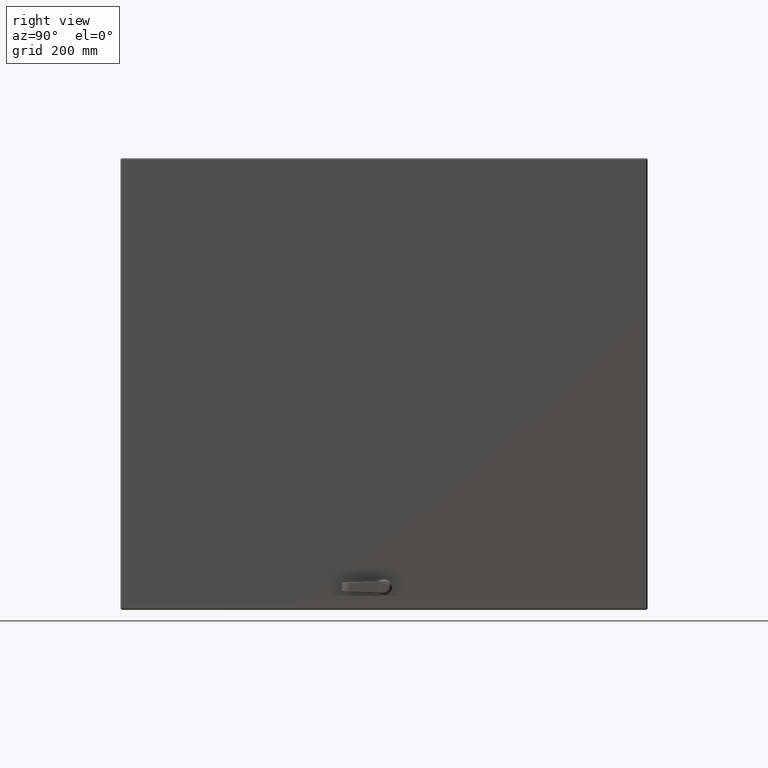
[diagram: clean part render]
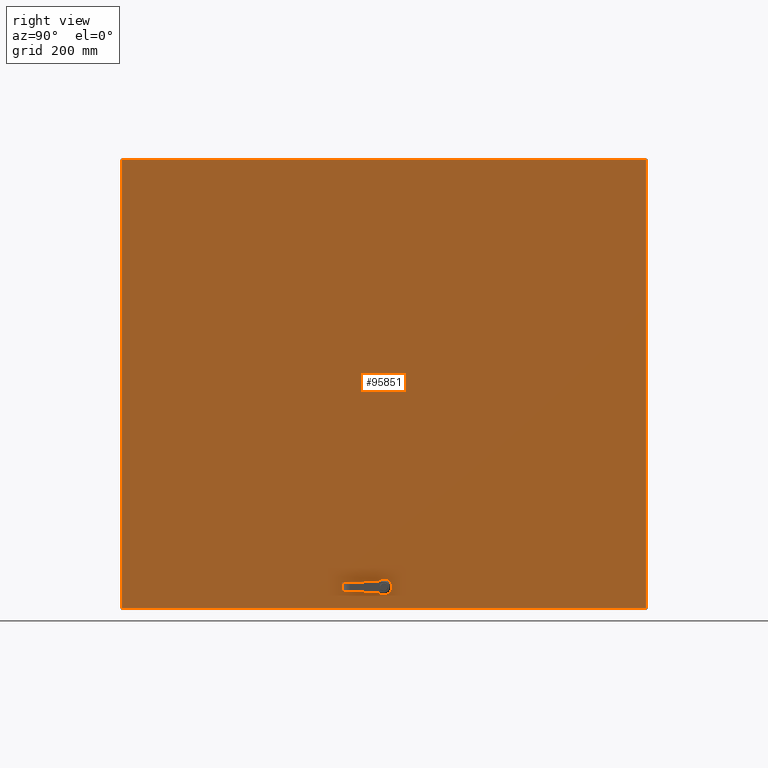
[diagram: same view with one face highlighted and labeled with its STEP entity id]
A machine part, right view. The second image highlights one B-rep face of the part: STEP entity #95851.
In plain terms, the highlighted planar face has unit normal (1, 0, 0).
Its self-contained STEP definition (entity closure, byte-faithful):
#259 = DIRECTION ( 'NONE',  ( -0.0000000000000000000, 0.0000000000000000000, 1.000000000000000000 ) ) ;
#719 = CARTESIAN_POINT ( 'NONE',  ( 15.78149999999996922, -16.83700000000003882, -0.2309966081253165826 ) ) ;
#720 = VECTOR ( 'NONE', #32867, 39.37007874015748854 ) ;
#2416 = VERTEX_POINT ( 'NONE', #58633 ) ;
#3179 = EDGE_LOOP ( 'NONE', ( #85381, #93412, #80948, #30301, #30164, #95240, #109386, #103662 ) ) ;
#3980 = DIRECTION ( 'NONE',  ( 0.0000000000000000000, -1.000000000000000000, 0.0000000000000000000 ) ) ;
#4741 = PLANE ( 'NONE',  #99557 ) ;
#4754 = ORIENTED_EDGE ( 'NONE', *, *, #26432, .T. ) ;
#6238 = VECTOR ( 'NONE', #24867, 39.37007874015748143 ) ;
#9439 = VERTEX_POINT ( 'NONE', #84633 ) ;
#9899 = VECTOR ( 'NONE', #118126, 39.37007874015748854 ) ;
#12937 = LINE ( 'NONE', #53409, #116969 ) ;
#14521 = ORIENTED_EDGE ( 'NONE', *, *, #24658, .T. ) ;
#18278 = VERTEX_POINT ( 'NONE', #114220 ) ;
#19674 = EDGE_CURVE ( 'NONE', #60976, #100654, #20524, .T. ) ;
#20388 = CARTESIAN_POINT ( 'NONE',  ( -17.88799999999999457, -16.83700000000003882, -0.3954999999940801425 ) ) ;
#20524 = LINE ( 'NONE', #77047, #115844 ) ;
#20949 = VERTEX_POINT ( 'NONE', #41597 ) ;
#22406 = DIRECTION ( 'NONE',  ( 0.0000000000000000000, -0.0000000000000000000, -1.000000000000000000 ) ) ;
#24658 = EDGE_CURVE ( 'NONE', #24969, #60976, #55889, .T. ) ;
#24867 = DIRECTION ( 'NONE',  ( 1.000000000000000000, 0.0000000000000000000, 0.0000000000000000000 ) ) ;
#24969 = VERTEX_POINT ( 'NONE', #56066 ) ;
#25293 = LINE ( 'NONE', #60735, #720 ) ;
#26432 = EDGE_CURVE ( 'NONE', #73761, #24969, #30795, .T. ) ;
#29527 = DIRECTION ( 'NONE',  ( 0.0000000000000000000, -0.0000000000000000000, -1.000000000000000000 ) ) ;
#30093 = VERTEX_POINT ( 'NONE', #99131 ) ;
#30164 = ORIENTED_EDGE ( 'NONE', *, *, #40474, .T. ) ;
#30301 = ORIENTED_EDGE ( 'NONE', *, *, #116766, .T. ) ;
#30795 = LINE ( 'NONE', #53482, #6238 ) ;
#32228 = CARTESIAN_POINT ( 'NONE',  ( -17.88799999999999457, -16.83700000000003882, -20.87649999999403505 ) ) ;
#32867 = DIRECTION ( 'NONE',  ( -0.7071067811865004993, 0.0000000000000000000, 0.7071067811865944241 ) ) ;
#33127 = VECTOR ( 'NONE', #91605, 39.37007874015748854 ) ;
#35856 = ORIENTED_EDGE ( 'NONE', *, *, #19674, .T. ) ;
#37639 = VECTOR ( 'NONE', #29527, 39.37007874015748143 ) ;
#39102 = FACE_BOUND ( 'NONE', #3179, .T. ) ;
#40474 = EDGE_CURVE ( 'NONE', #9439, #2416, #97527, .T. ) ;
#41597 = CARTESIAN_POINT ( 'NONE',  ( 15.94600339186870919, -16.83700000000003882, -0.3954999999940771449 ) ) ;
#43767 = EDGE_CURVE ( 'NONE', #61268, #73382, #104795, .T. ) ;
#44282 = CARTESIAN_POINT ( 'NONE',  ( 16.57250000000004775, -16.83700000000003882, -0.2309966081253139181 ) ) ;
#45799 = VECTOR ( 'NONE', #50892, 39.37007874015748143 ) ;
#46992 = VECTOR ( 'NONE', #22406, 39.37007874015748143 ) ;
#47552 = EDGE_CURVE ( 'NONE', #18278, #20949, #53428, .T. ) ;
#47684 = ORIENTED_EDGE ( 'NONE', *, *, #92398, .T. ) ;
#47724 = CARTESIAN_POINT ( 'NONE',  ( -17.88799999999999457, -16.83700000000003882, -20.87649999999403505 ) ) ;
#47728 = LINE ( 'NONE', #47724, #37639 ) ;
#49076 = EDGE_LOOP ( 'NONE', ( #14521, #35856, #47684, #4754 ) ) ;
#49538 = DIRECTION ( 'NONE',  ( -1.000000000000000000, -0.0000000000000000000, -0.0000000000000000000 ) ) ;
#50892 = DIRECTION ( 'NONE',  ( -0.0000000000000000000, 0.0000000000000000000, 1.000000000000000000 ) ) ;
#53409 = CARTESIAN_POINT ( 'NONE',  ( 16.40799660813126692, -16.83700000000003882, 0.3955000000060065468 ) ) ;
#53428 = LINE ( 'NONE', #20388, #96807 ) ;
#53482 = CARTESIAN_POINT ( 'NONE',  ( -17.88799999999999457, -16.83700000000003882, -20.87649999999403505 ) ) ;
#54778 = CARTESIAN_POINT ( 'NONE',  ( -17.88799999999999457, -16.83700000000003882, 0.3955000000060153176 ) ) ;
#55889 = LINE ( 'NONE', #78421, #45799 ) ;
#56066 = CARTESIAN_POINT ( 'NONE',  ( 17.86500000000000909, -16.83699996654045705, -20.87649999999403505 ) ) ;
#58140 = CARTESIAN_POINT ( 'NONE',  ( -17.88799999999999812, -16.83699991635108617, 20.87650000000596506 ) ) ;
#58633 = CARTESIAN_POINT ( 'NONE',  ( 16.57250000000004775, -16.83700000000003882, -0.2309966081253146675 ) ) ;
#60735 = CARTESIAN_POINT ( 'NONE',  ( 15.94600339186870919, -16.83700000000003882, -0.3954999999940801425 ) ) ;
#60976 = VERTEX_POINT ( 'NONE', #96151 ) ;
#61268 = VERTEX_POINT ( 'NONE', #719 ) ;
#62722 = DIRECTION ( 'NONE',  ( 0.7071067811865850983, 0.0000000000000000000, -0.7071067811865099362 ) ) ;
#62867 = LINE ( 'NONE', #54778, #106192 ) ;
#68598 = DIRECTION ( 'NONE',  ( 0.0000000000000000000, -0.0000000000000000000, -1.000000000000000000 ) ) ;
#70710 = CARTESIAN_POINT ( 'NONE',  ( -17.88799999999999457, -16.83700000000003882, -20.87649999999403505 ) ) ;
#72281 = CARTESIAN_POINT ( 'NONE',  ( 15.78149999999996922, -16.83700000000003882, 0.2309966081372490931 ) ) ;
#73382 = VERTEX_POINT ( 'NONE', #109515 ) ;
#73761 = VERTEX_POINT ( 'NONE', #70710 ) ;
#73788 = CARTESIAN_POINT ( 'NONE',  ( 15.78149999999996922, -16.83700000000003882, -20.87649999999403505 ) ) ;
#74407 = CARTESIAN_POINT ( 'NONE',  ( 16.40799660813126337, -16.83700000000003882, 0.3955000000060170939 ) ) ;
#74445 = EDGE_CURVE ( 'NONE', #2416, #18278, #74967, .T. ) ;
#74967 = LINE ( 'NONE', #44282, #9899 ) ;
#76532 = EDGE_CURVE ( 'NONE', #20949, #61268, #25293, .T. ) ;
#77047 = CARTESIAN_POINT ( 'NONE',  ( -17.88799999999999457, -16.83700000000003882, 20.87650000000596506 ) ) ;
#77731 = CARTESIAN_POINT ( 'NONE',  ( 16.57250000000004775, -16.83700000000003882, -20.87649999999403505 ) ) ;
#78421 = CARTESIAN_POINT ( 'NONE',  ( 17.86500000000000909, -16.83700000000003882, -20.87649999999403505 ) ) ;
#80948 = ORIENTED_EDGE ( 'NONE', *, *, #114680, .T. ) ;
#84633 = CARTESIAN_POINT ( 'NONE',  ( 16.57250000000004775, -16.83700000000003882, 0.2309966081372440971 ) ) ;
#85381 = ORIENTED_EDGE ( 'NONE', *, *, #43767, .T. ) ;
#91605 = DIRECTION ( 'NONE',  ( 0.7071067811864910624, 0.0000000000000000000, 0.7071067811866037500 ) ) ;
#92398 = EDGE_CURVE ( 'NONE', #100654, #73761, #47728, .T. ) ;
#92916 = EDGE_CURVE ( 'NONE', #73382, #30093, #106798, .T. ) ;
#93412 = ORIENTED_EDGE ( 'NONE', *, *, #92916, .T. ) ;
#94011 = FACE_OUTER_BOUND ( 'NONE', #49076, .T. ) ;
#95240 = ORIENTED_EDGE ( 'NONE', *, *, #74445, .T. ) ;
#95851 = ADVANCED_FACE ( 'NONE', ( #94011, #39102 ), #4741, .T. ) ;
#96145 = VECTOR ( 'NONE', #259, 39.37007874015748143 ) ;
#96151 = CARTESIAN_POINT ( 'NONE',  ( 17.86500000000000909, -16.83700000000003882, 20.87650000000596506 ) ) ;
#96748 = VERTEX_POINT ( 'NONE', #74407 ) ;
#96807 = VECTOR ( 'NONE', #102310, 39.37007874015748143 ) ;
#97527 = LINE ( 'NONE', #77731, #46992 ) ;
#99131 = CARTESIAN_POINT ( 'NONE',  ( 15.94600339186870919, -16.83700000000003882, 0.3955000000060159837 ) ) ;
#99557 = AXIS2_PLACEMENT_3D ( 'NONE', #32228, #3980, #68598 ) ;
#100654 = VERTEX_POINT ( 'NONE', #58140 ) ;
#102310 = DIRECTION ( 'NONE',  ( -1.000000000000000000, -0.0000000000000000000, -0.0000000000000000000 ) ) ;
#103662 = ORIENTED_EDGE ( 'NONE', *, *, #76532, .T. ) ;
#104795 = LINE ( 'NONE', #73788, #96145 ) ;
#106192 = VECTOR ( 'NONE', #108482, 39.37007874015748143 ) ;
#106798 = LINE ( 'NONE', #72281, #33127 ) ;
#108482 = DIRECTION ( 'NONE',  ( 1.000000000000000000, 0.0000000000000000000, 0.0000000000000000000 ) ) ;
#109386 = ORIENTED_EDGE ( 'NONE', *, *, #47552, .T. ) ;
#109515 = CARTESIAN_POINT ( 'NONE',  ( 15.78149999999996567, -16.83700000000003882, 0.2309966081372516189 ) ) ;
#114220 = CARTESIAN_POINT ( 'NONE',  ( 16.40799660813130245, -16.83700000000003882, -0.3954999999940739808 ) ) ;
#114680 = EDGE_CURVE ( 'NONE', #30093, #96748, #62867, .T. ) ;
#115844 = VECTOR ( 'NONE', #49538, 39.37007874015748143 ) ;
#116766 = EDGE_CURVE ( 'NONE', #96748, #9439, #12937, .T. ) ;
#116969 = VECTOR ( 'NONE', #62722, 39.37007874015748854 ) ;
#118126 = DIRECTION ( 'NONE',  ( -0.7071067811864910624, 0.0000000000000000000, -0.7071067811866037500 ) ) ;